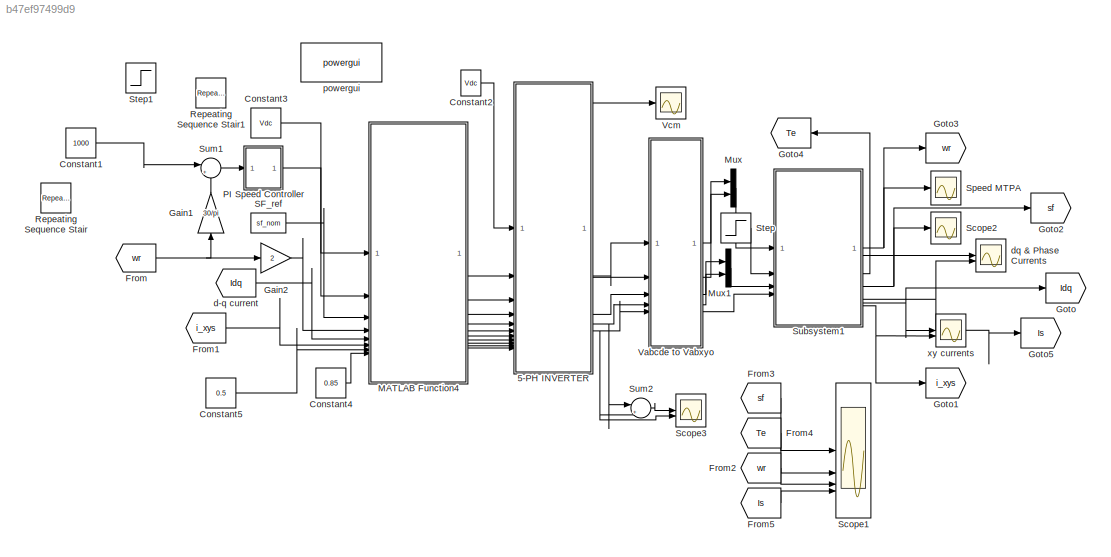
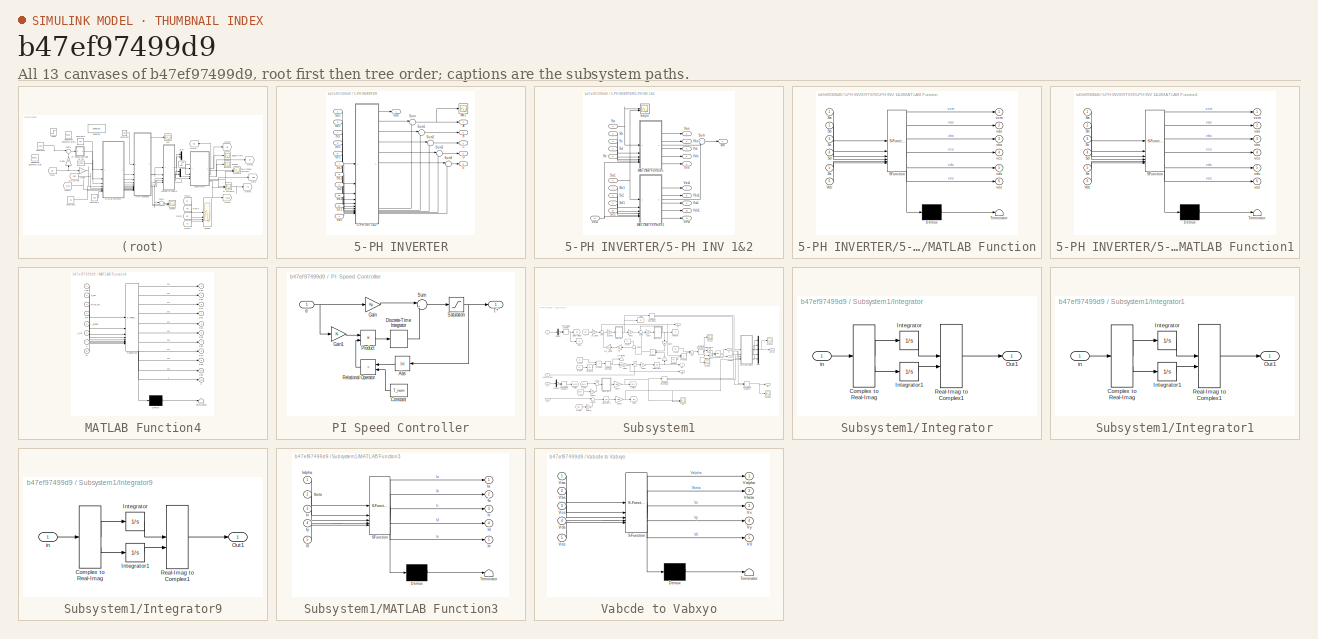
[diagram: thumbnail index - all 13 canvases of the model, root first then tree order]
MODEL slx_b47ef97499d9
KIND model
CONFIG AbsTol = auto
CONFIG EnableMultiTasking = off
CONFIG FixedStep = Ts
CONFIG MaxStep = auto
CONFIG MinStep = auto
CONFIG RelTol = 1e-3
CONFIG SampleTimeConstraint = Unconstrained
CONFIG SolverName = ode5
CONFIG StartTime = 0.0
CONFIG StopTime = 2
BLOCK [SubSystem] 5-PH INVERTER
BLOCK [SubSystem] 5-PH INVERTER/5-PH INV 1&2
BLOCK [SubSystem] 5-PH INVERTER/5-PH INV 1&2/MATLAB Function
  ErrorFcn = Stateflow.Translate.translate
  PermitHierarchicalResolution = ExplicitOnly
  SFBlockType = MATLAB Function
  TreatAsAtomicUnit = on
BLOCK [Demux] 5-PH INVERTER/5-PH INV 1&2/MATLAB Function/ Demux 
  Outputs = 1
BLOCK [S-Function] 5-PH INVERTER/5-PH INV 1&2/MATLAB Function/ SFunction 
  EnableBusSupport = on
  FunctionName = sf_sfun
  PortCounts = [6 7]
  SFcnIsStateOwnerBlock = off
  SFunctionDeploymentMode = off
  Tag = Stateflow S-Function 10
BLOCK [Terminator] 5-PH INVERTER/5-PH INV 1&2/MATLAB Function/ Terminator 
BLOCK [Inport] 5-PH INVERTER/5-PH INV 1&2/MATLAB Function/Sa
BLOCK [Inport] 5-PH INVERTER/5-PH INV 1&2/MATLAB Function/Sb
  Port = 2
BLOCK [Inport] 5-PH INVERTER/5-PH INV 1&2/MATLAB Function/Sc
  Port = 3
BLOCK [Inport] 5-PH INVERTER/5-PH INV 1&2/MATLAB Function/Sd
  Port = 4
BLOCK [Inport] 5-PH INVERTER/5-PH INV 1&2/MATLAB Function/Se
  Port = 5
BLOCK [Inport] 5-PH INVERTER/5-PH INV 1&2/MATLAB Function/Vdc
  Port = 6
BLOCK [Outport] 5-PH INVERTER/5-PH INV 1&2/MATLAB Function/vas
  Port = 2
BLOCK [Outport] 5-PH INVERTER/5-PH INV 1&2/MATLAB Function/vbs
  Port = 3
BLOCK [Outport] 5-PH INVERTER/5-PH INV 1&2/MATLAB Function/vcm
BLOCK [Outport] 5-PH INVERTER/5-PH INV 1&2/MATLAB Function/vcs
  Port = 4
BLOCK [Outport] 5-PH INVERTER/5-PH INV 1&2/MATLAB Function/vds
  Port = 5
BLOCK [Outport] 5-PH INVERTER/5-PH INV 1&2/MATLAB Function/ves
  Port = 6
BLOCK [SubSystem] 5-PH INVERTER/5-PH INV 1&2/MATLAB Function1
  ErrorFcn = Stateflow.Translate.translate
  PermitHierarchicalResolution = ExplicitOnly
  SFBlockType = MATLAB Function
  TreatAsAtomicUnit = on
BLOCK [Demux] 5-PH INVERTER/5-PH INV 1&2/MATLAB Function1/ Demux 
  Outputs = 1
BLOCK [S-Function] 5-PH INVERTER/5-PH INV 1&2/MATLAB Function1/ SFunction 
  EnableBusSupport = on
  FunctionName = sf_sfun
  PortCounts = [6 7]
  SFcnIsStateOwnerBlock = off
  SFunctionDeploymentMode = off
  Tag = Stateflow S-Function 30
BLOCK [Terminator] 5-PH INVERTER/5-PH INV 1&2/MATLAB Function1/ Terminator 
BLOCK [Inport] 5-PH INVERTER/5-PH INV 1&2/MATLAB Function1/Sa
BLOCK [Inport] 5-PH INVERTER/5-PH INV 1&2/MATLAB Function1/Sb
  Port = 2
BLOCK [Inport] 5-PH INVERTER/5-PH INV 1&2/MATLAB Function1/Sc
  Port = 3
BLOCK [Inport] 5-PH INVERTER/5-PH INV 1&2/MATLAB Function1/Sd
  Port = 4
BLOCK [Inport] 5-PH INVERTER/5-PH INV 1&2/MATLAB Function1/Se
  Port = 5
BLOCK [Inport] 5-PH INVERTER/5-PH INV 1&2/MATLAB Function1/Vdc
  Port = 6
BLOCK [Outport] 5-PH INVERTER/5-PH INV 1&2/MATLAB Function1/vas
  Port = 2
BLOCK [Outport] 5-PH INVERTER/5-PH INV 1&2/MATLAB Function1/vbs
  Port = 3
BLOCK [Outport] 5-PH INVERTER/5-PH INV 1&2/MATLAB Function1/vcm
BLOCK [Outport] 5-PH INVERTER/5-PH INV 1&2/MATLAB Function1/vcs
  Port = 4
BLOCK [Outport] 5-PH INVERTER/5-PH INV 1&2/MATLAB Function1/vds
  Port = 5
BLOCK [Outport] 5-PH INVERTER/5-PH INV 1&2/MATLAB Function1/ves
  Port = 6
BLOCK [Inport] 5-PH INVERTER/5-PH INV 1&2/Sa
BLOCK [Inport] 5-PH INVERTER/5-PH INV 1&2/Sa1
  Port = 6
BLOCK [Inport] 5-PH INVERTER/5-PH INV 1&2/Sb
  Port = 2
BLOCK [Inport] 5-PH INVERTER/5-PH INV 1&2/Sb1
  Port = 7
BLOCK [Inport] 5-PH INVERTER/5-PH INV 1&2/Sc
  Port = 3
BLOCK [Inport] 5-PH INVERTER/5-PH INV 1&2/Sc1
  Port = 8
BLOCK [Scope] 5-PH INVERTER/5-PH INV 1&2/Scope
  Floating = off
  NumInputPorts = 2
  ScopeSpecificationString = Simulink.scopes.TimeScopeBlockCfg('CurrentConfiguration', extmgr.ConfigurationSet(extmgr.Configuration('Core','General UI',true,'FigureColor',[1 1 1]),extmgr.Configuration('Core','Source UI',true),extmgr.Configuration('Sources','WiredSimulink',true,'DataLoggingVariableName','ScopeData1'),extmgr.Configuration('Visuals','Time Domain',true,'SerializedDisplays',{struct('MinYLimReal','-0.125','MaxYLimR...<+2235ch>
BLOCK [Inport] 5-PH INVERTER/5-PH INV 1&2/Sd
  Port = 4
BLOCK [Inport] 5-PH INVERTER/5-PH INV 1&2/Sd1
  Port = 9
BLOCK [Inport] 5-PH INVERTER/5-PH INV 1&2/Se
  Port = 5
BLOCK [Inport] 5-PH INVERTER/5-PH INV 1&2/Se1
  Port = 10
BLOCK [Sum] 5-PH INVERTER/5-PH INV 1&2/Sum
  Inputs = +-
BLOCK [Outport] 5-PH INVERTER/5-PH INV 1&2/Vas
  Port = 2
BLOCK [Outport] 5-PH INVERTER/5-PH INV 1&2/Vas1
  Port = 7
BLOCK [Outport] 5-PH INVERTER/5-PH INV 1&2/Vbs
  Port = 3
BLOCK [Outport] 5-PH INVERTER/5-PH INV 1&2/Vbs1
  Port = 8
BLOCK [Outport] 5-PH INVERTER/5-PH INV 1&2/Vcs
  Port = 4
BLOCK [Outport] 5-PH INVERTER/5-PH INV 1&2/Vcs1
  Port = 9
BLOCK [Inport] 5-PH INVERTER/5-PH INV 1&2/Vdc1
  Port = 11
BLOCK [Outport] 5-PH INVERTER/5-PH INV 1&2/Vds
  Port = 5
BLOCK [Outport] 5-PH INVERTER/5-PH INV 1&2/Vds1
  Port = 10
BLOCK [Outport] 5-PH INVERTER/5-PH INV 1&2/Ves
  Port = 6
BLOCK [Outport] 5-PH INVERTER/5-PH INV 1&2/Ves1
  Port = 11
BLOCK [Outport] 5-PH INVERTER/5-PH INV 1&2/vcm
BLOCK [Outport] 5-PH INVERTER/A
  Port = 2
BLOCK [Outport] 5-PH INVERTER/B
  Port = 3
BLOCK [Outport] 5-PH INVERTER/C
  Port = 4
BLOCK [Outport] 5-PH INVERTER/D
  Port = 5
BLOCK [Outport] 5-PH INVERTER/E
  Port = 6
BLOCK [Scope] 5-PH INVERTER/Md1
  Floating = off
  NumInputPorts = 1
  ScopeSpecificationString = Simulink.scopes.TimeScopeBlockCfg('CurrentConfiguration', extmgr.ConfigurationSet(extmgr.Configuration('Core','General UI',true),extmgr.Configuration('Core','Source UI',true),extmgr.Configuration('Sources','WiredSimulink',true,'DataLoggingVariableName','ScopeData1','DataLoggingLimitDataPoints',true,'DataLoggingSaveFormat','Array','DataLoggingDecimation','1','DataLoggingDecimateData',true),extmgr.C...<+1688ch>
BLOCK [Inport] 5-PH INVERTER/Sa1
  Port = 2
BLOCK [Inport] 5-PH INVERTER/Sa2
  Port = 7
BLOCK [Inport] 5-PH INVERTER/Sb1
  Port = 3
BLOCK [Inport] 5-PH INVERTER/Sb2
  Port = 8
BLOCK [Inport] 5-PH INVERTER/Sc1
  Port = 4
BLOCK [Inport] 5-PH INVERTER/Sc2
  Port = 9
BLOCK [Inport] 5-PH INVERTER/Sd1
  Port = 5
BLOCK [Inport] 5-PH INVERTER/Sd2
  Port = 10
BLOCK [Inport] 5-PH INVERTER/Se1
  Port = 6
BLOCK [Inport] 5-PH INVERTER/Se2
  Port = 11
BLOCK [Sum] 5-PH INVERTER/Sum
  Inputs = |+-
BLOCK [Sum] 5-PH INVERTER/Sum1
  Inputs = |+-
BLOCK [Sum] 5-PH INVERTER/Sum2
  Inputs = |+-
BLOCK [Sum] 5-PH INVERTER/Sum3
  Inputs = |+-
BLOCK [Sum] 5-PH INVERTER/Sum4
  Inputs = |+-
BLOCK [Outport] 5-PH INVERTER/Vcm
BLOCK [Inport] 5-PH INVERTER/Vdc
BLOCK [Constant] Constant1
  SampleTime = Ts
  Value = 1000
BLOCK [Constant] Constant2
  SampleTime = Ts
  Value = Vdc
BLOCK [Constant] Constant3
  SampleTime = Ts
  Value = Vdc
BLOCK [Constant] Constant4
  SampleTime = Ts
  Value = 0.85
BLOCK [Constant] Constant5
  SampleTime = Ts
  Value = 0.5
BLOCK [From] From
  GotoTag = wr
BLOCK [From] From1
  GotoTag = i_xys
BLOCK [From] From2
  GotoTag = wr
BLOCK [From] From3
  GotoTag = sf
BLOCK [From] From4
  GotoTag = Te
BLOCK [From] From5
  GotoTag = Is
BLOCK [Gain] Gain1
  Gain = 30/pi
  NameLocation = right
BLOCK [Gain] Gain2
  Gain = 2
BLOCK [Goto] Goto
  GotoTag = Idq
  TagVisibility = global
BLOCK [Goto] Goto1
  GotoTag = i_xys
BLOCK [Goto] Goto2
  GotoTag = sf
BLOCK [Goto] Goto3
  GotoTag = wr
BLOCK [Goto] Goto4
  GotoTag = Te
  NameLocation = top
BLOCK [Goto] Goto5
  GotoTag = Is
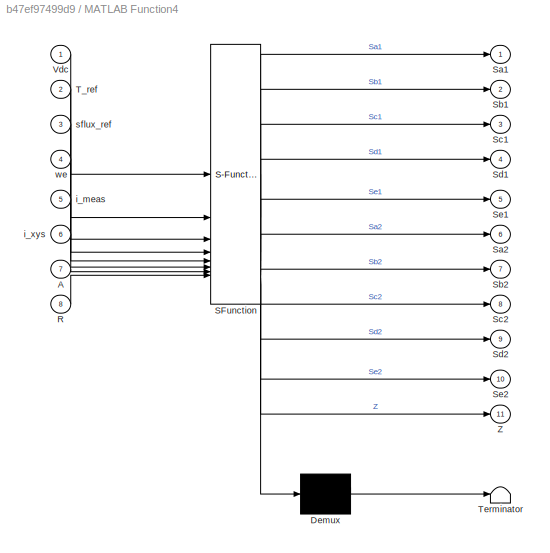
BLOCK [SubSystem] MATLAB Function4
  ErrorFcn = Stateflow.Translate.translate
  PermitHierarchicalResolution = ExplicitOnly
  SFBlockType = MATLAB Function
  TreatAsAtomicUnit = on
BLOCK [Demux] MATLAB Function4/ Demux 
  Outputs = 1
BLOCK [S-Function] MATLAB Function4/ SFunction 
  EnableBusSupport = on
  FunctionName = sf_sfun
  PortCounts = [8 12]
  SFcnIsStateOwnerBlock = off
  SFunctionDeploymentMode = off
  Tag = Stateflow S-Function 6
BLOCK [Terminator] MATLAB Function4/ Terminator 
BLOCK [Inport] MATLAB Function4/A
  Port = 7
BLOCK [Inport] MATLAB Function4/R
  Port = 8
BLOCK [Outport] MATLAB Function4/Sa1
BLOCK [Outport] MATLAB Function4/Sa2
  Port = 6
BLOCK [Outport] MATLAB Function4/Sb1
  Port = 2
BLOCK [Outport] MATLAB Function4/Sb2
  Port = 7
BLOCK [Outport] MATLAB Function4/Sc1
  Port = 3
BLOCK [Outport] MATLAB Function4/Sc2
  Port = 8
BLOCK [Outport] MATLAB Function4/Sd1
  Port = 4
BLOCK [Outport] MATLAB Function4/Sd2
  Port = 9
BLOCK [Outport] MATLAB Function4/Se1
  Port = 5
BLOCK [Outport] MATLAB Function4/Se2
  Port = 10
BLOCK [Inport] MATLAB Function4/T_ref
  Port = 2
BLOCK [Inport] MATLAB Function4/Vdc
BLOCK [Outport] MATLAB Function4/Z
  Port = 11
BLOCK [Inport] MATLAB Function4/i_meas
  Port = 5
BLOCK [Inport] MATLAB Function4/i_xys
  Port = 6
BLOCK [Inport] MATLAB Function4/sflux_ref
  Port = 3
BLOCK [Inport] MATLAB Function4/we
  Port = 4
BLOCK [Mux] Mux
  DisplayOption = bar
  Inputs = 2
BLOCK [Mux] Mux1
  DisplayOption = bar
  Inputs = 2
BLOCK [SubSystem] PI Speed Controller
BLOCK [Abs] PI Speed Controller/Abs
  NameLocation = top
  SaturateOnIntegerOverflow = off
BLOCK [Constant] PI Speed Controller/Constant
  NameLocation = top
  Value = T_nom
BLOCK [DiscreteIntegrator] PI Speed Controller/Discrete-Time Integrator
  ICPrevOutput = DiscIntNeverNeededParam
  ICPrevScaledInput = DiscIntNeverNeededParam
  InitialConditionSetting = Auto
  SampleTime = -1
BLOCK [Gain] PI Speed Controller/Gain
  Gain = Kp
BLOCK [Gain] PI Speed Controller/Gain1
  Gain = Ki
BLOCK [Product] PI Speed Controller/Product
BLOCK [RelationalOperator] PI Speed Controller/Relational Operator
  InputSameDT = off
  NameLocation = top
  Operator = <
  OutDataTypeStr = boolean
  RndMeth = Simplest
BLOCK [Saturate] PI Speed Controller/Saturation
  LowerLimit = -T_nom
  UpperLimit = T_nom
BLOCK [Sum] PI Speed Controller/Sum
  Inputs = |++
BLOCK [Outport] PI Speed Controller/T*
BLOCK [Inport] PI Speed Controller/e
BLOCK [Reference] Repeating Sequence Stair  REF=simulink/Sources/Repeating
Sequence
Stair
  SourceBlock = simulink/Sources/Repeating\nSequence\nStair
  SourceType = Repeating Sequence Stair
BLOCK [Reference] Repeating Sequence Stair1  REF=simulink/Sources/Repeating
Sequence
Stair
  SourceBlock = simulink/Sources/Repeating\nSequence\nStair
  SourceType = Repeating Sequence Stair
BLOCK [Constant] SF_ref
  SampleTime = Ts
  Value = sf_nom
BLOCK [Scope] Scope1
  Floating = off
  NumInputPorts = 4
  ScopeSpecificationString = Simulink.scopes.TimeScopeBlockCfg('CurrentConfiguration', extmgr.ConfigurationSet(extmgr.Configuration('Core','General UI',true,'FigureColor',[1 1 1]),extmgr.Configuration('Core','Source UI',true),extmgr.Configuration('Sources','WiredSimulink',true,'DataLoggingVariableName','ScopeData1','DataLogging',true),extmgr.Configuration('Visuals','Time Domain',true,'SerializedDisplays',{struct('MinYLimReal'...<+4686ch>
BLOCK [Scope] Scope2
  Floating = off
  NumInputPorts = 1
  ScopeSpecificationString = Simulink.scopes.TimeScopeBlockCfg('CurrentConfiguration', extmgr.ConfigurationSet(extmgr.Configuration('Core','General UI',true),extmgr.Configuration('Core','Source UI',true),extmgr.Configuration('Sources','WiredSimulink',true,'DataLoggingVariableName','ScopeData4'),extmgr.Configuration('Visuals','Time Domain',true,'SerializedDisplays',{struct('MinYLimReal','-0.03288','MaxYLimReal','0.29595','YLab...<+1512ch>
BLOCK [Scope] Scope3
  Floating = off
  NumInputPorts = 2
  ScopeSpecificationString = Simulink.scopes.TimeScopeBlockCfg('CurrentConfiguration', extmgr.ConfigurationSet(extmgr.Configuration('Core','General UI',true),extmgr.Configuration('Core','Source UI',true),extmgr.Configuration('Sources','WiredSimulink',true,'DataLoggingVariableName','ScopeData2'),extmgr.Configuration('Visuals','Time Domain',true,'SerializedDisplays',{struct('MinYLimReal','-500.00000','MaxYLimReal','500.00000','...<+2262ch>
BLOCK [Scope] Speed MTPA
  Floating = off
  NumInputPorts = 1
  ScopeSpecificationString = Simulink.scopes.TimeScopeBlockCfg('CurrentConfiguration', extmgr.ConfigurationSet(extmgr.Configuration('Core','General UI',true,'FigureColor',[1 1 1]),extmgr.Configuration('Core','Source UI',true),extmgr.Configuration('Sources','WiredSimulink',true,'DataLoggingVariableName','ScopeData5'),extmgr.Configuration('Visuals','Time Domain',true,'SerializedDisplays',{struct('MinYLimReal','-18.32914','MaxYL...<+1860ch>
BLOCK [Step] Step
  After = 0
  SampleTime = 0
BLOCK [Step] Step1
  After = -400
  Before = 400
  SampleTime = Ts
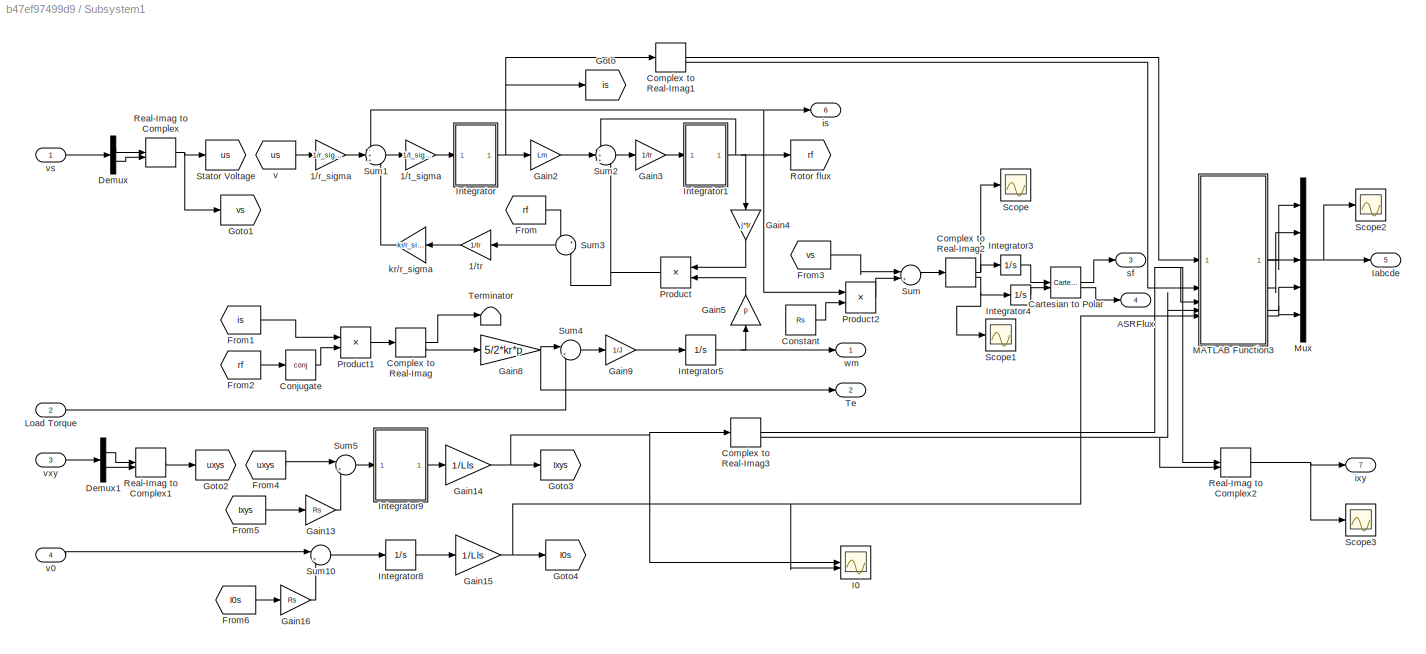
BLOCK [SubSystem] Subsystem1
BLOCK [Gain] Subsystem1/1//r_sigma
  Gain = 1/r_sigma
BLOCK [Gain] Subsystem1/1//t_sigma
  Gain = 1/t_sigma
BLOCK [Gain] Subsystem1/1//tr
  Gain = 1/tr
  NameLocation = top
BLOCK [Outport] Subsystem1/ASRFlux
  Port = 4
BLOCK [Reference] Subsystem1/Cartesian to Polar  REF=simulink_extras/Transformations/Cartesian to
Polar
  SourceBlock = simulink_extras/Transformations/Cartesian to\nPolar
  SourceType = Cart2Polar
BLOCK [ComplexToRealImag] Subsystem1/Complex to Real-Imag
BLOCK [ComplexToRealImag] Subsystem1/Complex to Real-Imag1
BLOCK [ComplexToRealImag] Subsystem1/Complex to Real-Imag2
BLOCK [ComplexToRealImag] Subsystem1/Complex to Real-Imag3
BLOCK [Math] Subsystem1/Conjugate
  Operator = conj
  RndMeth = Zero
  SignedPower = on
BLOCK [Constant] Subsystem1/Constant
  SampleTime = Ts
  Value = Rs
BLOCK [Demux] Subsystem1/Demux
  Outputs = 2
BLOCK [Demux] Subsystem1/Demux1
  Outputs = 2
BLOCK [From] Subsystem1/From
  GotoTag = rf
BLOCK [From] Subsystem1/From1
  GotoTag = is
BLOCK [From] Subsystem1/From2
  GotoTag = rf
BLOCK [From] Subsystem1/From3
  GotoTag = vs
BLOCK [From] Subsystem1/From4
  GotoTag = uxys
BLOCK [From] Subsystem1/From5
  GotoTag = Ixys
BLOCK [From] Subsystem1/From6
  GotoTag = I0s
BLOCK [Gain] Subsystem1/Gain13
  Gain = Rs
BLOCK [Gain] Subsystem1/Gain14
  Gain = 1/Lls
BLOCK [Gain] Subsystem1/Gain15
  Gain = 1/Lls
BLOCK [Gain] Subsystem1/Gain16
  Gain = Rs
BLOCK [Gain] Subsystem1/Gain2
  Gain = Lm
BLOCK [Gain] Subsystem1/Gain3
  Gain = 1/tr
BLOCK [Gain] Subsystem1/Gain4
  Gain = j*tr
  NameLocation = left
BLOCK [Gain] Subsystem1/Gain5
  Gain = p
  NameLocation = right
BLOCK [Gain] Subsystem1/Gain8
  Gain = 5/2*kr*p
BLOCK [Gain] Subsystem1/Gain9
  Gain = 1/J
BLOCK [Goto] Subsystem1/Goto
  GotoTag = is
BLOCK [Goto] Subsystem1/Goto1
  GotoTag = vs
BLOCK [Goto] Subsystem1/Goto2
  GotoTag = uxys
BLOCK [Goto] Subsystem1/Goto3
  GotoTag = Ixys
BLOCK [Goto] Subsystem1/Goto4
  GotoTag = I0s
BLOCK [Scope] Subsystem1/I0
  Floating = off
  NumInputPorts = 2
  ScopeSpecificationString = Simulink.scopes.TimeScopeBlockCfg('CurrentConfiguration', extmgr.ConfigurationSet(extmgr.Configuration('Core','General UI',true),extmgr.Configuration('Core','Source UI',true),extmgr.Configuration('Sources','WiredSimulink',true,'DataLoggingVariableName','ScopeData1'),extmgr.Configuration('Visuals','Time Domain',true,'SerializedDisplays',{struct('MinYLimReal','-14.43064','MaxYLimReal','6.98504','YLa...<+2103ch>
BLOCK [Outport] Subsystem1/Iabcde
  Port = 5
BLOCK [SubSystem] Subsystem1/Integrator
BLOCK [ComplexToRealImag] Subsystem1/Integrator/Complex to Real-Imag
BLOCK [Integrator] Subsystem1/Integrator/Integrator
BLOCK [Integrator] Subsystem1/Integrator/Integrator1
BLOCK [Outport] Subsystem1/Integrator/Out1 
BLOCK [RealImagToComplex] Subsystem1/Integrator/Real-Imag to Complex1
BLOCK [Inport] Subsystem1/Integrator/in
BLOCK [SubSystem] Subsystem1/Integrator1
BLOCK [ComplexToRealImag] Subsystem1/Integrator1/Complex to Real-Imag
BLOCK [Integrator] Subsystem1/Integrator1/Integrator
BLOCK [Integrator] Subsystem1/Integrator1/Integrator1
BLOCK [Outport] Subsystem1/Integrator1/Out1 
BLOCK [RealImagToComplex] Subsystem1/Integrator1/Real-Imag to Complex1
BLOCK [Inport] Subsystem1/Integrator1/in
BLOCK [Integrator] Subsystem1/Integrator3
BLOCK [Integrator] Subsystem1/Integrator4
BLOCK [Integrator] Subsystem1/Integrator5
BLOCK [Integrator] Subsystem1/Integrator8
BLOCK [SubSystem] Subsystem1/Integrator9
BLOCK [ComplexToRealImag] Subsystem1/Integrator9/Complex to Real-Imag
BLOCK [Integrator] Subsystem1/Integrator9/Integrator
BLOCK [Integrator] Subsystem1/Integrator9/Integrator1
BLOCK [Outport] Subsystem1/Integrator9/Out1 
BLOCK [RealImagToComplex] Subsystem1/Integrator9/Real-Imag to Complex1
BLOCK [Inport] Subsystem1/Integrator9/in
BLOCK [Inport] Subsystem1/Load Torque
  Port = 2
BLOCK [SubSystem] Subsystem1/MATLAB Function3
  ErrorFcn = Stateflow.Translate.translate
  PermitHierarchicalResolution = ExplicitOnly
  SFBlockType = MATLAB Function
  TreatAsAtomicUnit = on
BLOCK [Demux] Subsystem1/MATLAB Function3/ Demux 
  Outputs = 1
BLOCK [S-Function] Subsystem1/MATLAB Function3/ SFunction 
  EnableBusSupport = on
  FunctionName = sf_sfun
  PortCounts = [5 6]
  SFcnIsStateOwnerBlock = off
  SFunctionDeploymentMode = off
  Tag = Stateflow S-Function 11
BLOCK [Terminator] Subsystem1/MATLAB Function3/ Terminator 
BLOCK [Inport] Subsystem1/MATLAB Function3/I0
  Port = 5
BLOCK [Outport] Subsystem1/MATLAB Function3/Ia
BLOCK [Inport] Subsystem1/MATLAB Function3/Ialpha
BLOCK [Outport] Subsystem1/MATLAB Function3/Ib
  Port = 2
BLOCK [Inport] Subsystem1/MATLAB Function3/Ibeta
  Port = 2
BLOCK [Outport] Subsystem1/MATLAB Function3/Ic
  Port = 3
BLOCK [Outport] Subsystem1/MATLAB Function3/Id
  Port = 4
BLOCK [Outport] Subsystem1/MATLAB Function3/Ie
  Port = 5
BLOCK [Inport] Subsystem1/MATLAB Function3/Ix
  Port = 3
BLOCK [Inport] Subsystem1/MATLAB Function3/Iy
  Port = 4
BLOCK [Mux] Subsystem1/Mux
  DisplayOption = bar
  Inputs = 5
BLOCK [Product] Subsystem1/Product
  NameLocation = top
BLOCK [Product] Subsystem1/Product1
BLOCK [Product] Subsystem1/Product2
BLOCK [RealImagToComplex] Subsystem1/Real-Imag to Complex
BLOCK [RealImagToComplex] Subsystem1/Real-Imag to Complex1
BLOCK [RealImagToComplex] Subsystem1/Real-Imag to Complex2
BLOCK [Goto] Subsystem1/Rotor flux
  GotoTag = rf
BLOCK [Scope] Subsystem1/Scope
  Floating = off
  NumInputPorts = 1
  ScopeSpecificationString = Simulink.scopes.TimeScopeBlockCfg('CurrentConfiguration', extmgr.ConfigurationSet(extmgr.Configuration('Core','General UI',true),extmgr.Configuration('Core','Source UI',true),extmgr.Configuration('Sources','WiredSimulink',true,'DataLoggingVariableName','ScopeData2'),extmgr.Configuration('Visuals','Time Domain',true,'SerializedDisplays',{struct('MinYLimReal','-165.75365','MaxYLimReal','166.52765','...<+1396ch>
BLOCK [Scope] Subsystem1/Scope1
  Floating = off
  NumInputPorts = 1
  ScopeSpecificationString = Simulink.scopes.TimeScopeBlockCfg('CurrentConfiguration', extmgr.ConfigurationSet(extmgr.Configuration('Core','General UI',true),extmgr.Configuration('Core','Source UI',true),extmgr.Configuration('Sources','WiredSimulink',true,'DataLoggingVariableName','ScopeData3'),extmgr.Configuration('Visuals','Time Domain',true,'SerializedDisplays',{struct('MinYLimReal','-166.77764','MaxYLimReal','161.44574','...<+1396ch>
BLOCK [Scope] Subsystem1/Scope2
  Floating = off
  NumInputPorts = 1
  ScopeSpecificationString = Simulink.scopes.TimeScopeBlockCfg('CurrentConfiguration', extmgr.ConfigurationSet(extmgr.Configuration('Core','General UI',true),extmgr.Configuration('Core','Source UI',true),extmgr.Configuration('Sources','WiredSimulink',true,'DataLoggingVariableName','ScopeData4'),extmgr.Configuration('Visuals','Time Domain',true,'SerializedDisplays',{struct('MinYLimReal','-9.913','MaxYLimReal','13.03993','YLabe...<+1571ch>
BLOCK [Scope] Subsystem1/Scope3
  Floating = off
  NumInputPorts = 1
  ScopeSpecificationString = Simulink.scopes.TimeScopeBlockCfg('CurrentConfiguration', extmgr.ConfigurationSet(extmgr.Configuration('Core','General UI',true),extmgr.Configuration('Core','Source UI',true),extmgr.Configuration('Sources','WiredSimulink',true),extmgr.Configuration('Visuals','Time Domain',true,'SerializedDisplays',{struct('MinYLimReal','-68.86667','MaxYLimReal','62.02928','YLabelReal','','MinYLimMag','0.00000','Ma...<+1406ch>
BLOCK [Goto] Subsystem1/Stator Voltage
  GotoTag = us
BLOCK [Sum] Subsystem1/Sum
  Inputs = |+-
BLOCK [Sum] Subsystem1/Sum1
  Inputs = -++
BLOCK [Sum] Subsystem1/Sum10
  Inputs = |+-
BLOCK [Sum] Subsystem1/Sum2
  Inputs = -++
BLOCK [Sum] Subsystem1/Sum3
  Inputs = +-
  NameLocation = top
BLOCK [Sum] Subsystem1/Sum4
  Inputs = |+-
BLOCK [Sum] Subsystem1/Sum5
  Inputs = |+-
BLOCK [Outport] Subsystem1/Te
  Port = 2
BLOCK [Terminator] Subsystem1/Terminator
BLOCK [Outport] Subsystem1/is 
  Port = 6
BLOCK [Outport] Subsystem1/ixy
  Port = 7
BLOCK [Gain] Subsystem1/kr//r_sigma
  Gain = kr/r_sigma
  NameLocation = top
BLOCK [Outport] Subsystem1/sf
  Port = 3
BLOCK [From] Subsystem1/v
  GotoTag = us
BLOCK [Inport] Subsystem1/v0
  Port = 4
BLOCK [Inport] Subsystem1/vs
BLOCK [Inport] Subsystem1/vxy
  Port = 3
BLOCK [Outport] Subsystem1/wm
BLOCK [Sum] Sum1
  Inputs = |+-
BLOCK [Sum] Sum2
  Inputs = |+-
BLOCK [SubSystem] Vabcde to Vabxyo
  ErrorFcn = Stateflow.Translate.translate
  PermitHierarchicalResolution = ExplicitOnly
  SFBlockType = MATLAB Function
  TreatAsAtomicUnit = on
BLOCK [Demux] Vabcde to Vabxyo/ Demux 
  Outputs = 1
BLOCK [S-Function] Vabcde to Vabxyo/ SFunction 
  EnableBusSupport = on
  FunctionName = sf_sfun
  PortCounts = [5 6]
  SFcnIsStateOwnerBlock = off
  SFunctionDeploymentMode = off
  Tag = Stateflow S-Function 4
BLOCK [Terminator] Vabcde to Vabxyo/ Terminator 
BLOCK [Outport] Vabcde to Vabxyo/V0
  Port = 5
BLOCK [Outport] Vabcde to Vabxyo/Valpha
BLOCK [Inport] Vabcde to Vabxyo/Vas
BLOCK [Outport] Vabcde to Vabxyo/Vbeta
  Port = 2
BLOCK [Inport] Vabcde to Vabxyo/Vbs
  Port = 2
BLOCK [Inport] Vabcde to Vabxyo/Vcs
  Port = 3
BLOCK [Inport] Vabcde to Vabxyo/Vds
  Port = 4
BLOCK [Inport] Vabcde to Vabxyo/Ves
  Port = 5
BLOCK [Outport] Vabcde to Vabxyo/Vx
  Port = 3
BLOCK [Outport] Vabcde to Vabxyo/Vy
  Port = 4
BLOCK [Scope] Vcm
  Floating = off
  NumInputPorts = 1
  ScopeSpecificationString = Simulink.scopes.TimeScopeBlockCfg('CurrentConfiguration', extmgr.ConfigurationSet(extmgr.Configuration('Core','General UI',true),extmgr.Configuration('Core','Source UI',true),extmgr.Configuration('Sources','WiredSimulink',true,'DataLoggingVariableName','ScopeData6'),extmgr.Configuration('Visuals','Time Domain',true,'SerializedDisplays',{struct('MinYLimReal','-1.00000','MaxYLimReal','1.00000','YLab...<+1561ch>
BLOCK [From] d-q current
  GotoTag = Idq
  TagVisibility = global
BLOCK [Scope] dq & Phase Currents
  Floating = off
  NumInputPorts = 2
  ScopeSpecificationString = Simulink.scopes.TimeScopeBlockCfg('CurrentConfiguration', extmgr.ConfigurationSet(extmgr.Configuration('Core','General UI',true,'FigureColor',[1 1 1]),extmgr.Configuration('Core','Source UI',true),extmgr.Configuration('Sources','WiredSimulink',true,'DataLoggingVariableName','ScopeData7'),extmgr.Configuration('Visuals','Time Domain',true,'SerializedDisplays',{struct('MinYLimReal','-3.92617','MaxYLi...<+3187ch>
BLOCK [Reference] powergui  REF=spspowerguiLib/powergui
  LibrarySourceBlock = sps_lib/powergui
  Priority = 1
  SourceBlock = spspowerguiLib/powergui
  SourceType = PSB option menu block
BLOCK [Scope] xy currents
  Floating = off
  NumInputPorts = 2
  ScopeSpecificationString = Simulink.scopes.TimeScopeBlockCfg('CurrentConfiguration', extmgr.ConfigurationSet(extmgr.Configuration('Core','General UI',true),extmgr.Configuration('Core','Source UI',true),extmgr.Configuration('Sources','WiredSimulink',true,'DataLoggingVariableName','ScopeData8'),extmgr.Configuration('Visuals','Time Domain',true,'SerializedDisplays',{struct('MinYLimReal','-8.66652','MaxYLimReal','8.6681','YLabe...<+2421ch>
LINE 5-PH INVERTER/5-PH INV 1&2/MATLAB Function1:1 -> 5-PH INVERTER/5-PH INV 1&2/Sum:2
LINE 5-PH INVERTER/5-PH INV 1&2/MATLAB Function1:2 -> 5-PH INVERTER/5-PH INV 1&2/Vas1:1
LINE 5-PH INVERTER/5-PH INV 1&2/MATLAB Function1:3 -> 5-PH INVERTER/5-PH INV 1&2/Vbs1:1
LINE 5-PH INVERTER/5-PH INV 1&2/MATLAB Function1:4 -> 5-PH INVERTER/5-PH INV 1&2/Vcs1:1
LINE 5-PH INVERTER/5-PH INV 1&2/MATLAB Function1:5 -> 5-PH INVERTER/5-PH INV 1&2/Vds1:1
LINE 5-PH INVERTER/5-PH INV 1&2/MATLAB Function1:6 -> 5-PH INVERTER/5-PH INV 1&2/Ves1:1
LINE 5-PH INVERTER/5-PH INV 1&2/MATLAB Function:1 -> 5-PH INVERTER/5-PH INV 1&2/Sum:1
LINE 5-PH INVERTER/5-PH INV 1&2/MATLAB Function:2 -> 5-PH INVERTER/5-PH INV 1&2/Vas:1
LINE 5-PH INVERTER/5-PH INV 1&2/MATLAB Function:3 -> 5-PH INVERTER/5-PH INV 1&2/Vbs:1
LINE 5-PH INVERTER/5-PH INV 1&2/MATLAB Function:4 -> 5-PH INVERTER/5-PH INV 1&2/Vcs:1
LINE 5-PH INVERTER/5-PH INV 1&2/MATLAB Function:5 -> 5-PH INVERTER/5-PH INV 1&2/Vds:1
LINE 5-PH INVERTER/5-PH INV 1&2/MATLAB Function:6 -> 5-PH INVERTER/5-PH INV 1&2/Ves:1
NET 5-PH INVERTER/5-PH INV 1&2/Sa1:1 -> 5-PH INVERTER/5-PH INV 1&2/MATLAB Function1:1, 5-PH INVERTER/5-PH INV 1&2/Scope:2
NET 5-PH INVERTER/5-PH INV 1&2/Sa:1 -> 5-PH INVERTER/5-PH INV 1&2/MATLAB Function:1, 5-PH INVERTER/5-PH INV 1&2/Scope:1
LINE 5-PH INVERTER/5-PH INV 1&2/Sb1:1 -> 5-PH INVERTER/5-PH INV 1&2/MATLAB Function1:2
LINE 5-PH INVERTER/5-PH INV 1&2/Sb:1 -> 5-PH INVERTER/5-PH INV 1&2/MATLAB Function:2
LINE 5-PH INVERTER/5-PH INV 1&2/Sc1:1 -> 5-PH INVERTER/5-PH INV 1&2/MATLAB Function1:3
LINE 5-PH INVERTER/5-PH INV 1&2/Sc:1 -> 5-PH INVERTER/5-PH INV 1&2/MATLAB Function:3
LINE 5-PH INVERTER/5-PH INV 1&2/Sd1:1 -> 5-PH INVERTER/5-PH INV 1&2/MATLAB Function1:4
LINE 5-PH INVERTER/5-PH INV 1&2/Sd:1 -> 5-PH INVERTER/5-PH INV 1&2/MATLAB Function:4
LINE 5-PH INVERTER/5-PH INV 1&2/Se1:1 -> 5-PH INVERTER/5-PH INV 1&2/MATLAB Function1:5
LINE 5-PH INVERTER/5-PH INV 1&2/Se:1 -> 5-PH INVERTER/5-PH INV 1&2/MATLAB Function:5
LINE 5-PH INVERTER/5-PH INV 1&2/Sum:1 -> 5-PH INVERTER/5-PH INV 1&2/vcm:1
NET 5-PH INVERTER/5-PH INV 1&2/Vdc1:1 -> 5-PH INVERTER/5-PH INV 1&2/MATLAB Function1:6, 5-PH INVERTER/5-PH INV 1&2/MATLAB Function:6
LINE 5-PH INVERTER/5-PH INV 1&2:1 -> 5-PH INVERTER/Vcm:1
LINE 5-PH INVERTER/5-PH INV 1&2:10 -> 5-PH INVERTER/Sum3:2
LINE 5-PH INVERTER/5-PH INV 1&2:11 -> 5-PH INVERTER/Sum4:2
LINE 5-PH INVERTER/5-PH INV 1&2:2 -> 5-PH INVERTER/Sum:1
LINE 5-PH INVERTER/5-PH INV 1&2:3 -> 5-PH INVERTER/Sum1:1
LINE 5-PH INVERTER/5-PH INV 1&2:4 -> 5-PH INVERTER/Sum2:1
LINE 5-PH INVERTER/5-PH INV 1&2:5 -> 5-PH INVERTER/Sum3:1
LINE 5-PH INVERTER/5-PH INV 1&2:6 -> 5-PH INVERTER/Sum4:1
LINE 5-PH INVERTER/5-PH INV 1&2:7 -> 5-PH INVERTER/Sum:2
LINE 5-PH INVERTER/5-PH INV 1&2:8 -> 5-PH INVERTER/Sum1:2
LINE 5-PH INVERTER/5-PH INV 1&2:9 -> 5-PH INVERTER/Sum2:2
LINE 5-PH INVERTER/Sa1:1 -> 5-PH INVERTER/5-PH INV 1&2:1
LINE 5-PH INVERTER/Sa2:1 -> 5-PH INVERTER/5-PH INV 1&2:6
LINE 5-PH INVERTER/Sb1:1 -> 5-PH INVERTER/5-PH INV 1&2:2
LINE 5-PH INVERTER/Sb2:1 -> 5-PH INVERTER/5-PH INV 1&2:7
LINE 5-PH INVERTER/Sc1:1 -> 5-PH INVERTER/5-PH INV 1&2:3
LINE 5-PH INVERTER/Sc2:1 -> 5-PH INVERTER/5-PH INV 1&2:8
LINE 5-PH INVERTER/Sd1:1 -> 5-PH INVERTER/5-PH INV 1&2:4
LINE 5-PH INVERTER/Sd2:1 -> 5-PH INVERTER/5-PH INV 1&2:9
LINE 5-PH INVERTER/Se1:1 -> 5-PH INVERTER/5-PH INV 1&2:5
LINE 5-PH INVERTER/Se2:1 -> 5-PH INVERTER/5-PH INV 1&2:10
LINE 5-PH INVERTER/Sum1:1 -> 5-PH INVERTER/B:1
LINE 5-PH INVERTER/Sum2:1 -> 5-PH INVERTER/C:1
LINE 5-PH INVERTER/Sum3:1 -> 5-PH INVERTER/D:1
LINE 5-PH INVERTER/Sum4:1 -> 5-PH INVERTER/E:1
NET 5-PH INVERTER/Sum:1 -> 5-PH INVERTER/A:1, 5-PH INVERTER/Md1:1
LINE 5-PH INVERTER/Vdc:1 -> 5-PH INVERTER/5-PH INV 1&2:11
LINE 5-PH INVERTER:1 -> Vcm:1
LINE 5-PH INVERTER:2 -> Vabcde to Vabxyo:1
LINE 5-PH INVERTER:3 -> Vabcde to Vabxyo:2
LINE 5-PH INVERTER:4 -> Vabcde to Vabxyo:3
NET 5-PH INVERTER:5 -> Sum2:1, Vabcde to Vabxyo:4
NET 5-PH INVERTER:6 -> Scope3:2, Sum2:2, Vabcde to Vabxyo:5
LINE Constant1:1 -> Sum1:1
LINE Constant2:1 -> 5-PH INVERTER:1
LINE Constant3:1 -> MATLAB Function4:1
LINE Constant4:1 -> MATLAB Function4:8
LINE Constant5:1 -> MATLAB Function4:7
LINE From1:1 -> MATLAB Function4:6
LINE From2:1 -> Scope1:3
LINE From3:1 -> Scope1:1
LINE From4:1 -> Scope1:2
LINE From5:1 -> Scope1:4
NET From:1 -> Gain1:1, Gain2:1
LINE Gain1:1 -> Sum1:2
LINE Gain2:1 -> MATLAB Function4:4
LINE MATLAB Function4:1 -> 5-PH INVERTER:2
LINE MATLAB Function4:10 -> 5-PH INVERTER:11
LINE MATLAB Function4:2 -> 5-PH INVERTER:3
LINE MATLAB Function4:3 -> 5-PH INVERTER:4
LINE MATLAB Function4:4 -> 5-PH INVERTER:5
LINE MATLAB Function4:5 -> 5-PH INVERTER:6
LINE MATLAB Function4:6 -> 5-PH INVERTER:7
LINE MATLAB Function4:7 -> 5-PH INVERTER:8
LINE MATLAB Function4:8 -> 5-PH INVERTER:9
LINE MATLAB Function4:9 -> 5-PH INVERTER:10
LINE Mux1:1 -> Subsystem1:3
LINE Mux:1 -> Subsystem1:1
LINE PI Speed Controller/Abs:1 -> PI Speed Controller/Relational Operator:1
LINE PI Speed Controller/Constant:1 -> PI Speed Controller/Relational Operator:2
LINE PI Speed Controller/Discrete-Time Integrator:1 -> PI Speed Controller/Sum:2
LINE PI Speed Controller/Gain1:1 -> PI Speed Controller/Product:1
LINE PI Speed Controller/Gain:1 -> PI Speed Controller/Sum:1
LINE PI Speed Controller/Product:1 -> PI Speed Controller/Discrete-Time Integrator:1
LINE PI Speed Controller/Relational Operator:1 -> PI Speed Controller/Product:2
NET PI Speed Controller/Saturation:1 -> PI Speed Controller/Abs:1, PI Speed Controller/T*:1
LINE PI Speed Controller/Sum:1 -> PI Speed Controller/Saturation:1
NET PI Speed Controller/e:1 -> PI Speed Controller/Gain1:1, PI Speed Controller/Gain:1
LINE PI Speed Controller:1 -> MATLAB Function4:2
LINE SF_ref:1 -> MATLAB Function4:3
LINE Step:1 -> Subsystem1:2
LINE Subsystem1/1//r_sigma:1 -> Subsystem1/Sum1:2
LINE Subsystem1/1//t_sigma:1 -> Subsystem1/Integrator:1
LINE Subsystem1/1//tr:1 -> Subsystem1/kr//r_sigma:1
LINE Subsystem1/Cartesian to Polar:1 -> Subsystem1/sf:1
LINE Subsystem1/Cartesian to Polar:2 -> Subsystem1/ASRFlux:1
LINE Subsystem1/Complex to Real-Imag1:1 -> Subsystem1/MATLAB Function3:1
LINE Subsystem1/Complex to Real-Imag1:2 -> Subsystem1/MATLAB Function3:2
NET Subsystem1/Complex to Real-Imag2:1 -> Subsystem1/Integrator3:1, Subsystem1/Scope:1
NET Subsystem1/Complex to Real-Imag2:2 -> Subsystem1/Integrator4:1, Subsystem1/Scope1:1
NET Subsystem1/Complex to Real-Imag3:1 -> Subsystem1/MATLAB Function3:3, Subsystem1/Real-Imag to Complex2:1
NET Subsystem1/Complex to Real-Imag3:2 -> Subsystem1/MATLAB Function3:4, Subsystem1/Real-Imag to Complex2:2
LINE Subsystem1/Complex to Real-Imag:1 -> Subsystem1/Terminator:1
LINE Subsystem1/Complex to Real-Imag:2 -> Subsystem1/Gain8:1
LINE Subsystem1/Conjugate:1 -> Subsystem1/Product1:2
LINE Subsystem1/Constant:1 -> Subsystem1/Product2:2
LINE Subsystem1/Demux1:1 -> Subsystem1/Real-Imag to Complex1:1
LINE Subsystem1/Demux1:2 -> Subsystem1/Real-Imag to Complex1:2
LINE Subsystem1/Demux:1 -> Subsystem1/Real-Imag to Complex:1
LINE Subsystem1/Demux:2 -> Subsystem1/Real-Imag to Complex:2
LINE Subsystem1/From1:1 -> Subsystem1/Product1:1
LINE Subsystem1/From2:1 -> Subsystem1/Conjugate:1
LINE Subsystem1/From3:1 -> Subsystem1/Sum:1
LINE Subsystem1/From4:1 -> Subsystem1/Sum5:1
LINE Subsystem1/From5:1 -> Subsystem1/Gain13:1
LINE Subsystem1/From6:1 -> Subsystem1/Gain16:1
LINE Subsystem1/From:1 -> Subsystem1/Sum3:1
LINE Subsystem1/Gain13:1 -> Subsystem1/Sum5:2
NET Subsystem1/Gain14:1 -> Subsystem1/Complex to Real-Imag3:1, Subsystem1/Goto3:1, Subsystem1/I0:1
NET Subsystem1/Gain15:1 -> Subsystem1/Goto4:1, Subsystem1/I0:2, Subsystem1/MATLAB Function3:5
LINE Subsystem1/Gain16:1 -> Subsystem1/Sum10:2
LINE Subsystem1/Gain2:1 -> Subsystem1/Sum2:2
LINE Subsystem1/Gain3:1 -> Subsystem1/Integrator1:1
LINE Subsystem1/Gain4:1 -> Subsystem1/Product:1
LINE Subsystem1/Gain5:1 -> Subsystem1/Product:2
NET Subsystem1/Gain8:1 -> Subsystem1/Sum4:1, Subsystem1/Te:1
LINE Subsystem1/Gain9:1 -> Subsystem1/Integrator5:1
LINE Subsystem1/Integrator/Complex to Real-Imag:1 -> Subsystem1/Integrator/Integrator:1
LINE Subsystem1/Integrator/Complex to Real-Imag:2 -> Subsystem1/Integrator/Integrator1:1
LINE Subsystem1/Integrator/Integrator1:1 -> Subsystem1/Integrator/Real-Imag to Complex1:2
LINE Subsystem1/Integrator/Integrator:1 -> Subsystem1/Integrator/Real-Imag to Complex1:1
LINE Subsystem1/Integrator/Real-Imag to Complex1:1 -> Subsystem1/Integrator/Out1 :1
LINE Subsystem1/Integrator/in:1 -> Subsystem1/Integrator/Complex to Real-Imag:1
LINE Subsystem1/Integrator1/Complex to Real-Imag:1 -> Subsystem1/Integrator1/Integrator:1
LINE Subsystem1/Integrator1/Complex to Real-Imag:2 -> Subsystem1/Integrator1/Integrator1:1
LINE Subsystem1/Integrator1/Integrator1:1 -> Subsystem1/Integrator1/Real-Imag to Complex1:2
LINE Subsystem1/Integrator1/Integrator:1 -> Subsystem1/Integrator1/Real-Imag to Complex1:1
LINE Subsystem1/Integrator1/Real-Imag to Complex1:1 -> Subsystem1/Integrator1/Out1 :1
LINE Subsystem1/Integrator1/in:1 -> Subsystem1/Integrator1/Complex to Real-Imag:1
NET Subsystem1/Integrator1:1 -> Subsystem1/Gain4:1, Subsystem1/Rotor flux:1, Subsystem1/Sum2:1
LINE Subsystem1/Integrator3:1 -> Subsystem1/Cartesian to Polar:1
LINE Subsystem1/Integrator4:1 -> Subsystem1/Cartesian to Polar:2
NET Subsystem1/Integrator5:1 -> Subsystem1/Gain5:1, Subsystem1/wm:1
LINE Subsystem1/Integrator8:1 -> Subsystem1/Gain15:1
LINE Subsystem1/Integrator9/Complex to Real-Imag:1 -> Subsystem1/Integrator9/Integrator:1
LINE Subsystem1/Integrator9/Complex to Real-Imag:2 -> Subsystem1/Integrator9/Integrator1:1
LINE Subsystem1/Integrator9/Integrator1:1 -> Subsystem1/Integrator9/Real-Imag to Complex1:2
LINE Subsystem1/Integrator9/Integrator:1 -> Subsystem1/Integrator9/Real-Imag to Complex1:1
LINE Subsystem1/Integrator9/Real-Imag to Complex1:1 -> Subsystem1/Integrator9/Out1 :1
LINE Subsystem1/Integrator9/in:1 -> Subsystem1/Integrator9/Complex to Real-Imag:1
LINE Subsystem1/Integrator9:1 -> Subsystem1/Gain14:1
NET Subsystem1/Integrator:1 -> Subsystem1/Complex to Real-Imag1:1, Subsystem1/Gain2:1, Subsystem1/Goto:1, Subsystem1/Product2:1, Subsystem1/Sum1:1, Subsystem1/is :1
LINE Subsystem1/Load Torque:1 -> Subsystem1/Sum4:2
LINE Subsystem1/MATLAB Function3:1 -> Subsystem1/Mux:1
LINE Subsystem1/MATLAB Function3:2 -> Subsystem1/Mux:2
LINE Subsystem1/MATLAB Function3:3 -> Subsystem1/Mux:3
LINE Subsystem1/MATLAB Function3:4 -> Subsystem1/Mux:4
LINE Subsystem1/MATLAB Function3:5 -> Subsystem1/Mux:5
NET Subsystem1/Mux:1 -> Subsystem1/Iabcde:1, Subsystem1/Scope2:1
LINE Subsystem1/Product1:1 -> Subsystem1/Complex to Real-Imag:1
LINE Subsystem1/Product2:1 -> Subsystem1/Sum:2
NET Subsystem1/Product:1 -> Subsystem1/Sum2:3, Subsystem1/Sum3:2
LINE Subsystem1/Real-Imag to Complex1:1 -> Subsystem1/Goto2:1
NET Subsystem1/Real-Imag to Complex2:1 -> Subsystem1/Scope3:1, Subsystem1/ixy:1
NET Subsystem1/Real-Imag to Complex:1 -> Subsystem1/Goto1:1, Subsystem1/Stator Voltage:1
LINE Subsystem1/Sum10:1 -> Subsystem1/Integrator8:1
LINE Subsystem1/Sum1:1 -> Subsystem1/1//t_sigma:1
LINE Subsystem1/Sum2:1 -> Subsystem1/Gain3:1
LINE Subsystem1/Sum3:1 -> Subsystem1/1//tr:1
LINE Subsystem1/Sum4:1 -> Subsystem1/Gain9:1
LINE Subsystem1/Sum5:1 -> Subsystem1/Integrator9:1
LINE Subsystem1/Sum:1 -> Subsystem1/Complex to Real-Imag2:1
LINE Subsystem1/kr//r_sigma:1 -> Subsystem1/Sum1:3
LINE Subsystem1/v0:1 -> Subsystem1/Sum10:1
LINE Subsystem1/v:1 -> Subsystem1/1//r_sigma:1
LINE Subsystem1/vs:1 -> Subsystem1/Demux:1
LINE Subsystem1/vxy:1 -> Subsystem1/Demux1:1
NET Subsystem1:1 -> Goto3:1, Speed MTPA:1
LINE Subsystem1:2 -> Goto4:1
NET Subsystem1:3 -> Goto2:1, Scope2:1
LINE Subsystem1:4 -> dq & Phase Currents:1
NET Subsystem1:5 -> Goto5:1, dq & Phase Currents:2
NET Subsystem1:6 -> Goto:1, xy currents:1
NET Subsystem1:7 -> Goto1:1, xy currents:2
LINE Sum1:1 -> PI Speed Controller:1
LINE Sum2:1 -> Scope3:1
LINE Vabcde to Vabxyo:1 -> Mux:1
LINE Vabcde to Vabxyo:2 -> Mux:2
LINE Vabcde to Vabxyo:3 -> Mux1:1
LINE Vabcde to Vabxyo:4 -> Mux1:2
LINE Vabcde to Vabxyo:5 -> Subsystem1:4
LINE d-q current:1 -> MATLAB Function4:5
note: NET lines group one-source signal fan-out (src -> all destinations, sorted); 1:1 wires keep LINE
CHART Subsystem1/MATLAB Function3 states=1 transitions=1
  STATE_LABEL 'eML_blk_kernel()'
  STATE_LABEL 'SCRIPT:\nfunction[Ia, Ib, Ic, Id, Ie] = fcn(Ialpha, Ibeta, Ix, Iy, I0)\nIa= 1*Ialpha+0*Ibeta+1*Ix-0*Iy+1*I0;\nIb= 0.3090*Ialpha+0.9511*Ibeta-0.8090*Ix-0.5878*Iy+1*I0;\nIc= -0.8090*Ialpha+0.5878*Ibeta+0.3090*Ix+0.9511*Iy+1*I0;\nId= -0.8090*Ialpha-0.5878*Ibeta+0.3090*Ix-0.9511*Iy+1*I0;\nIe= 0.3090*Ialpha-0.9511*Ibeta-0.8090*Ix+0.5878*Iy+1*I0;\n\n\n   \n   \n  \n   '
CHART 5-PH INVERTER/5-PH INV 1&2/MATLAB Function1 states=1 transitions=1
  STATE_LABEL 'eML_blk_kernel()'
  STATE_LABEL 'SCRIPT:\nfunction [vcm,vas,vbs,vcs,vds,ves] = fcn(Sa,Sb,Sc,Sd,Se,Vdc)\nvas=(Vdc/5)*(4*Sa-Sb-Sc-Sd-Se);\nvbs=(Vdc/5)*(-Sa+4*Sb-Sc-Sd-Se);\nvcs=(Vdc/5)*(-Sa-Sb+4*Sc-Sd-Se);\nvds=(Vdc/5)*(-Sa-Sb-Sc+4*Sd-Se);\nves=(Vdc/5)*(-Sa-Sb-Sc-Sd+4*Se);\nvcm=(Vdc/5)*(Sa+Sb+Sc+Sd+Se)-(Vdc/2);\n\n\n'
CHART Vabcde to Vabxyo states=1 transitions=1
  STATE_LABEL 'eML_blk_kernel()'
  STATE_LABEL 'SCRIPT:\nfunction[Valpha, Vbeta, Vx, Vy, V0] = fcn(Vas, Vbs, Vcs, Vds, Ves)\nValpha= (2/5)*(Vas+Vbs*cos(2*pi/5)+Vcs*cos(4*pi/5)+Vds*cos(6*pi/5)+Ves*cos(8*pi/5));\nVbeta=(2/5)*(0+Vbs*sin(2*pi/5)+Vcs*sin(4*pi/5)+Vds*sin(6*pi/5)+Ves*sin(8*pi/5));\nVx=(2/5)*(Vas+Vbs*cos(6*pi/5)+Vcs*cos(12*pi/5)+Vds*cos(18*pi/5)+Ves*cos(24*pi/5));\nVy=(2/5)*(0+Vbs*sin(6*pi/5)+Vcs*sin(12*pi/5)+Vds*sin(18*pi/5)+Ves*sin(24*pi/...<+57ch>'
CHART MATLAB Function4 states=1 transitions=1
  STATE_LABEL 'eML_blk_kernel()'
  STATE_LABEL 'SCRIPT:\nfunction [Sa1,Sb1,Sc1,Sd1,Se1,Sa2,Sb2,Sc2,Sd2,Se2,Z] = fcn(Vdc,T_ref,sflux_ref,we,i_meas,i_xys,A,R)\n% Variables defined in the parameters file\n% Sampling time of the predictive algorithm [s]\n Ts = 10e-5;\n p = 2; % Pole pairs\n Lm = 84e-3; % Magnetizing inductance [H]\n Ls = 90e-3; % Stator inductance [H]\n Lr = 90e-3; % Rotor inductance [H]\n Lls = 6e-3;\n Rs = 1.05; % Stator resistance [Ohm]\n ...<+3608ch>'
CHART 5-PH INVERTER/5-PH INV 1&2/MATLAB Function states=1 transitions=1
  STATE_LABEL 'eML_blk_kernel()'
  STATE_LABEL 'SCRIPT:\nfunction [vcm,vas,vbs,vcs,vds,ves] = fcn(Sa,Sb,Sc,Sd,Se,Vdc)\nvas=(Vdc/5)*(4*Sa-Sb-Sc-Sd-Se);\nvbs=(Vdc/5)*(-Sa+4*Sb-Sc-Sd-Se);\nvcs=(Vdc/5)*(-Sa-Sb+4*Sc-Sd-Se);\nvds=(Vdc/5)*(-Sa-Sb-Sc+4*Sd-Se);\nves=(Vdc/5)*(-Sa-Sb-Sc-Sd+4*Se);\nvcm=(Vdc/5)*(Sa+Sb+Sc+Sd+Se)-(Vdc/2);\n\n\n'
CHART  states=0 transitions=0
CHART  states=0 transitions=0
CHART  states=0 transitions=0
CHART  states=0 transitions=0
CHART  states=0 transitions=0
